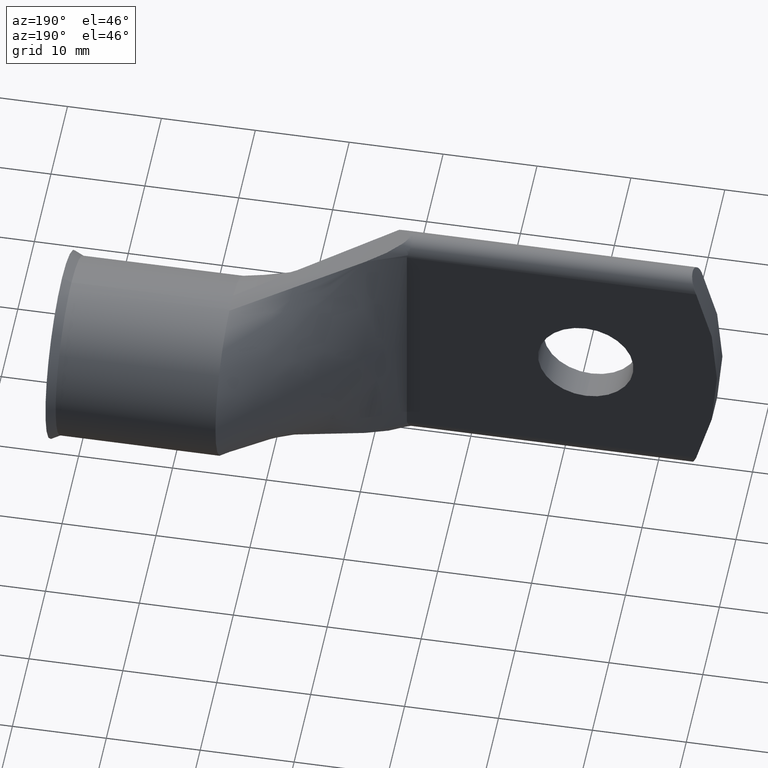
[diagram: clean part render]
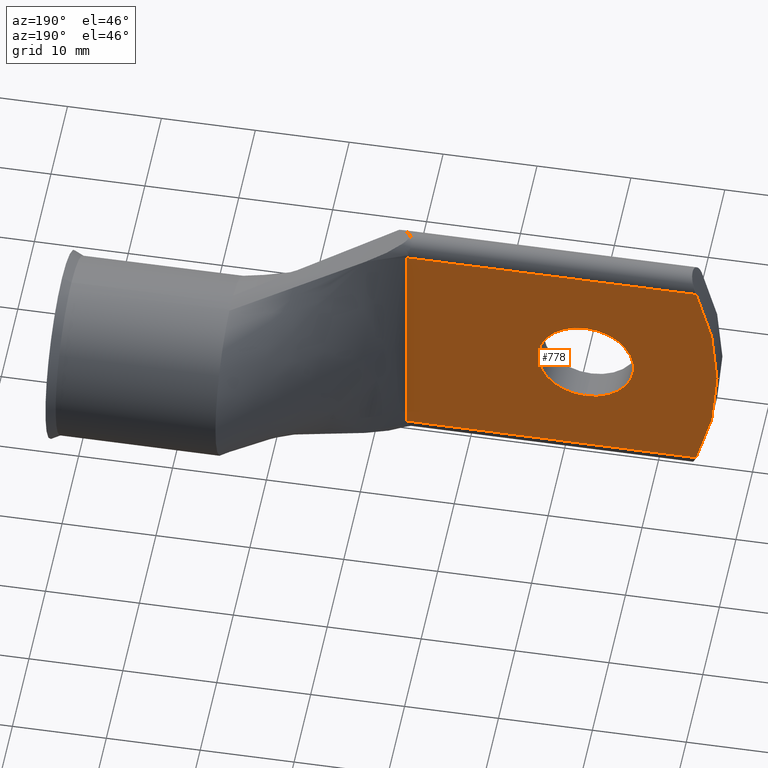
[diagram: same view with one face highlighted and labeled with its STEP entity id]
A machine part, auxiliary view. The second image highlights one B-rep face of the part: STEP entity #778.
In plain terms, the highlighted planar face has unit normal (0, -1, 0).
Its self-contained STEP definition (entity closure, byte-faithful):
#320 = VERTEX_POINT ( 'NONE', #1717 ) ;
#729 = AXIS2_PLACEMENT_3D ( 'NONE', #1948, #4375, #768 ) ;
#746 = LINE ( 'NONE', #3810, #4628 ) ;
#767 = LINE ( 'NONE', #3226, #1947 ) ;
#768 = DIRECTION ( 'NONE',  ( 0.000000000000000000, -0.000000000000000000, -1.000000000000000000 ) ) ;
#778 = ADVANCED_FACE ( 'NONE', ( #2004, #4686 ), #1152, .F. ) ;
#802 = DIRECTION ( 'NONE',  ( 0.000000000000000000, 1.000000000000000000, 0.000000000000000000 ) ) ;
#865 = ORIENTED_EDGE ( 'NONE', *, *, #4597, .F. ) ;
#893 = VECTOR ( 'NONE', #1006, 39.37007874015748143 ) ;
#1006 = DIRECTION ( 'NONE',  ( -0.000000000000000000, 0.000000000000000000, 1.000000000000000000 ) ) ;
#1143 = CIRCLE ( 'NONE', #3716, 1.391442742266553845 ) ;
#1152 = PLANE ( 'NONE',  #729 ) ;
#1186 = DIRECTION ( 'NONE',  ( 0.000000000000000000, 0.000000000000000000, 1.000000000000000000 ) ) ;
#1301 = EDGE_LOOP ( 'NONE', ( #2414, #865 ) ) ;
#1405 = ORIENTED_EDGE ( 'NONE', *, *, #1605, .F. ) ;
#1481 = VERTEX_POINT ( 'NONE', #3569 ) ;
#1511 = CARTESIAN_POINT ( 'NONE',  ( 0.7414427422665539336, 0.06500000000000000222, -1.587115114208776440E-16 ) ) ;
#1559 = DIRECTION ( 'NONE',  ( 0.000000000000000000, 1.000000000000000000, 0.000000000000000000 ) ) ;
#1588 = DIRECTION ( 'NONE',  ( -0.000000000000000000, -1.000000000000000000, 0.000000000000000000 ) ) ;
#1605 = EDGE_CURVE ( 'NONE', #4343, #5071, #4566, .T. ) ;
#1717 = CARTESIAN_POINT ( 'NONE',  ( -0.09999999999999979738, 0.06500000000000000222, -0.2000000000000000111 ) ) ;
#1828 = DIRECTION ( 'NONE',  ( 1.000000000000000000, 0.000000000000000000, 0.000000000000000000 ) ) ;
#1941 = ORIENTED_EDGE ( 'NONE', *, *, #3917, .F. ) ;
#1947 = VECTOR ( 'NONE', #4812, 39.37007874015748143 ) ;
#1948 = CARTESIAN_POINT ( 'NONE',  ( 0.7414427422665539336, 0.06500000000000000222, -1.587115114208776440E-16 ) ) ;
#1957 = CARTESIAN_POINT ( 'NONE',  ( -0.09999999999999982514, 0.06500000000000000222, 0.000000000000000000 ) ) ;
#2004 = FACE_BOUND ( 'NONE', #1301, .T. ) ;
#2028 = CARTESIAN_POINT ( 'NONE',  ( 0.6500000000000000222, 0.06500000000000000222, -0.4850000000000000977 ) ) ;
#2321 = EDGE_CURVE ( 'NONE', #3488, #5071, #746, .T. ) ;
#2339 = CARTESIAN_POINT ( 'NONE',  ( -0.09999999999999982514, 0.06500000000000000222, 0.000000000000000000 ) ) ;
#2414 = ORIENTED_EDGE ( 'NONE', *, *, #2947, .F. ) ;
#2760 = DIRECTION ( 'NONE',  ( 0.000000000000000000, 0.000000000000000000, 1.000000000000000000 ) ) ;
#2803 = CIRCLE ( 'NONE', #4961, 0.2000000000000000111 ) ;
#2888 = VERTEX_POINT ( 'NONE', #3183 ) ;
#2947 = EDGE_CURVE ( 'NONE', #1481, #320, #2803, .T. ) ;
#2959 = ORIENTED_EDGE ( 'NONE', *, *, #2321, .T. ) ;
#3039 = EDGE_LOOP ( 'NONE', ( #1405, #4142, #1941, #2959 ) ) ;
#3097 = DIRECTION ( 'NONE',  ( 0.000000000000000000, 0.000000000000000000, -1.000000000000000000 ) ) ;
#3183 = CARTESIAN_POINT ( 'NONE',  ( -0.5627381903521790907, 0.06500000000000000222, -0.4849999999999994871 ) ) ;
#3226 = CARTESIAN_POINT ( 'NONE',  ( 0.6500000000000000222, 0.06500000000000000222, -0.4850000000000000977 ) ) ;
#3382 = CARTESIAN_POINT ( 'NONE',  ( 0.6500000000000000222, 0.06500000000000000222, 0.4850000000000001532 ) ) ;
#3488 = VERTEX_POINT ( 'NONE', #4074 ) ;
#3569 = CARTESIAN_POINT ( 'NONE',  ( -0.09999999999999982514, 0.06500000000000000222, 0.2000000000000000111 ) ) ;
#3696 = CIRCLE ( 'NONE', #4198, 0.2000000000000000111 ) ;
#3716 = AXIS2_PLACEMENT_3D ( 'NONE', #1511, #1588, #3097 ) ;
#3810 = CARTESIAN_POINT ( 'NONE',  ( 0.7414427422665539336, 0.06500000000000000222, 0.4850000000408568601 ) ) ;
#3917 = EDGE_CURVE ( 'NONE', #3488, #2888, #1143, .T. ) ;
#4074 = CARTESIAN_POINT ( 'NONE',  ( -0.5627381903369848004, 0.06500000000000000222, 0.4850000000408568601 ) ) ;
#4142 = ORIENTED_EDGE ( 'NONE', *, *, #4412, .T. ) ;
#4198 = AXIS2_PLACEMENT_3D ( 'NONE', #2339, #1559, #2760 ) ;
#4343 = VERTEX_POINT ( 'NONE', #2028 ) ;
#4375 = DIRECTION ( 'NONE',  ( 0.000000000000000000, -1.000000000000000000, 0.000000000000000000 ) ) ;
#4412 = EDGE_CURVE ( 'NONE', #4343, #2888, #767, .T. ) ;
#4566 = LINE ( 'NONE', #4591, #893 ) ;
#4591 = CARTESIAN_POINT ( 'NONE',  ( 0.6500000000000000222, 0.06500000000000000222, -1.587115114208776440E-16 ) ) ;
#4597 = EDGE_CURVE ( 'NONE', #320, #1481, #3696, .T. ) ;
#4628 = VECTOR ( 'NONE', #1828, 39.37007874015748143 ) ;
#4686 = FACE_OUTER_BOUND ( 'NONE', #3039, .T. ) ;
#4812 = DIRECTION ( 'NONE',  ( -1.000000000000000000, 0.000000000000000000, 0.000000000000000000 ) ) ;
#4961 = AXIS2_PLACEMENT_3D ( 'NONE', #1957, #802, #1186 ) ;
#5071 = VERTEX_POINT ( 'NONE', #3382 ) ;